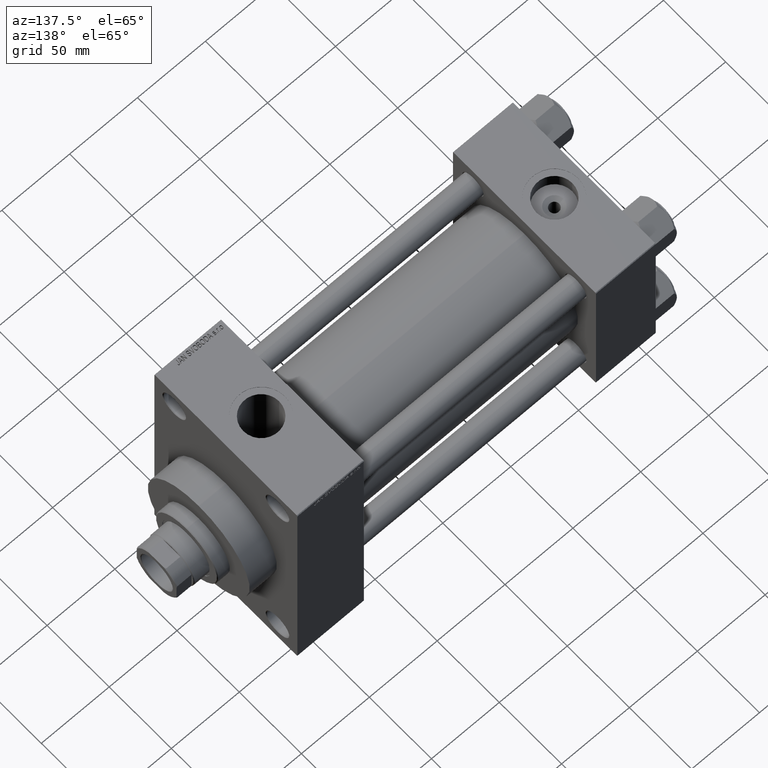
[diagram: clean part render]
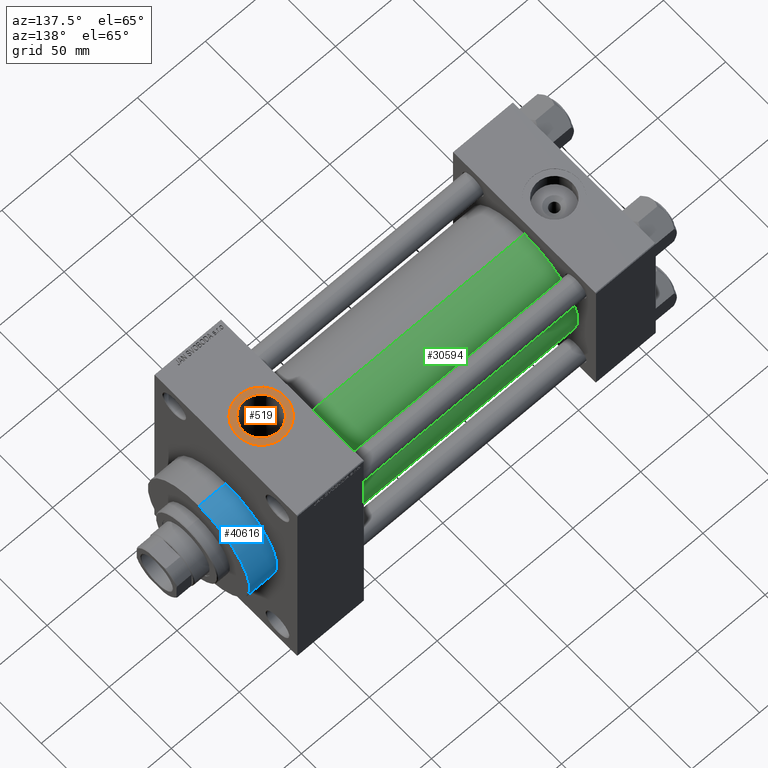
[diagram: same view with three faces highlighted in distinct colors, each labeled with its STEP entity id]
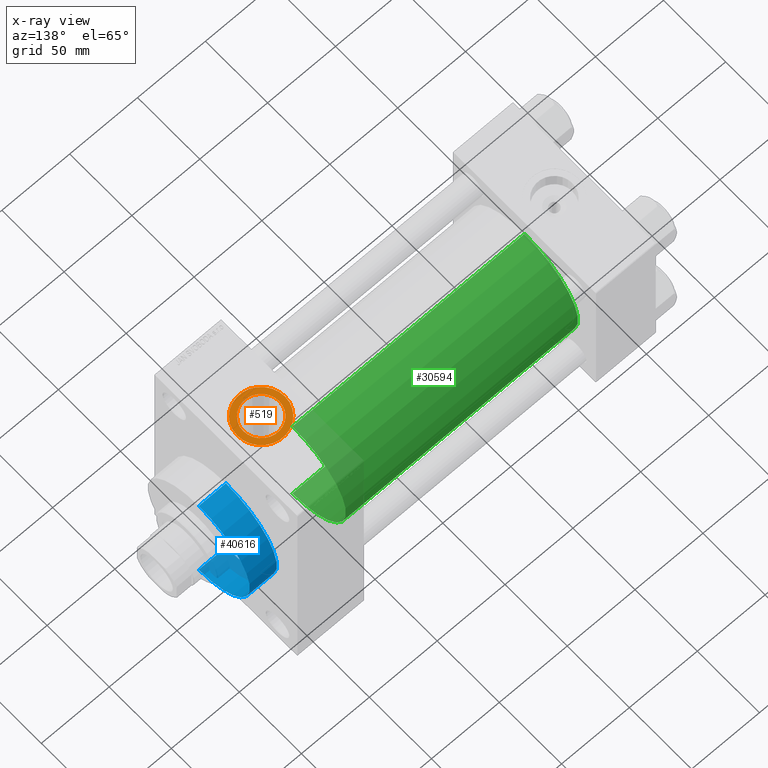
[diagram: x-ray of the same camera — body ghosted, the three highlighted faces saturated]
A machine part, auxiliary view with three faces highlighted in distinct colors.
The next image is the same camera in x-ray (body ghosted, the three faces saturated) — at least one of them is partly hidden behind the body in this view.
Their STEP definitions:

[orange] entity #519 — the highlighted planar face has unit normal (0, 0, 1).
#519 = ADVANCED_FACE ( 'NONE', ( #42188, #9642 ), #24812, .T. ) ;
#1498 = DIRECTION ( 'NONE',  ( 1.000000000000000000, 0.000000000000000000, 0.000000000000000000 ) ) ;
#4405 = CIRCLE ( 'NONE', #8263, 13.22000000000000952 ) ;
#6262 = CARTESIAN_POINT ( 'NONE',  ( 238.0000000000000000, 0.000000000000000000, 89.79999999999999716 ) ) ;
#6962 = ORIENTED_EDGE ( 'NONE', *, *, #41485, .T. ) ;
#7513 = DIRECTION ( 'NONE',  ( 0.000000000000000000, 0.000000000000000000, 1.000000000000000000 ) ) ;
#8263 = AXIS2_PLACEMENT_3D ( 'NONE', #21613, #44266, #22338 ) ;
#8378 = ORIENTED_EDGE ( 'NONE', *, *, #28409, .T. ) ;
#8501 = DIRECTION ( 'NONE',  ( 0.000000000000000000, 0.000000000000000000, 1.000000000000000000 ) ) ;
#9013 = AXIS2_PLACEMENT_3D ( 'NONE', #22440, #7513, #22675 ) ;
#9642 = FACE_OUTER_BOUND ( 'NONE', #29473, .T. ) ;
#11820 = CARTESIAN_POINT ( 'NONE',  ( 255.5000000000000000, 0.000000000000000000, 89.79999999999999716 ) ) ;
#13989 = VERTEX_POINT ( 'NONE', #37207 ) ;
#16875 = VERTEX_POINT ( 'NONE', #28342 ) ;
#17228 = CARTESIAN_POINT ( 'NONE',  ( 238.0000000000000000, 0.000000000000000000, 89.79999999999999716 ) ) ;
#17767 = ORIENTED_EDGE ( 'NONE', *, *, #31083, .T. ) ;
#21117 = CARTESIAN_POINT ( 'NONE',  ( 220.5000000000000000, 2.143131898507868248E-15, 89.79999999999999716 ) ) ;
#21389 = CIRCLE ( 'NONE', #42929, 17.50000000000001421 ) ;
#21613 = CARTESIAN_POINT ( 'NONE',  ( 238.0000000000000000, 0.000000000000000000, 89.79999999999999716 ) ) ;
#22338 = DIRECTION ( 'NONE',  ( 1.000000000000000000, 0.000000000000000000, 0.000000000000000000 ) ) ;
#22440 = CARTESIAN_POINT ( 'NONE',  ( 238.0000000000000000, 0.000000000000000000, 89.79999999999999716 ) ) ;
#22675 = DIRECTION ( 'NONE',  ( 1.000000000000000000, 0.000000000000000000, 0.000000000000000000 ) ) ;
#23101 = VERTEX_POINT ( 'NONE', #11820 ) ;
#24812 = PLANE ( 'NONE',  #47014 ) ;
#27485 = DIRECTION ( 'NONE',  ( 1.000000000000000000, 0.000000000000000000, -0.000000000000000000 ) ) ;
#28342 = CARTESIAN_POINT ( 'NONE',  ( 224.7800000000000011, 0.000000000000000000, 89.79999999999999716 ) ) ;
#28409 = EDGE_CURVE ( 'NONE', #32582, #23101, #37444, .T. ) ;
#29473 = EDGE_LOOP ( 'NONE', ( #17767, #8378 ) ) ;
#29620 = EDGE_CURVE ( 'NONE', #13989, #16875, #4405, .T. ) ;
#30964 = DIRECTION ( 'NONE',  ( 1.000000000000000000, 0.000000000000000000, 0.000000000000000000 ) ) ;
#31083 = EDGE_CURVE ( 'NONE', #23101, #32582, #21389, .T. ) ;
#31988 = AXIS2_PLACEMENT_3D ( 'NONE', #17228, #38666, #30964 ) ;
#32481 = EDGE_LOOP ( 'NONE', ( #6962, #42863 ) ) ;
#32582 = VERTEX_POINT ( 'NONE', #21117 ) ;
#37207 = CARTESIAN_POINT ( 'NONE',  ( 251.2199999999999989, 1.618983068472796024E-15, 89.79999999999999716 ) ) ;
#37444 = CIRCLE ( 'NONE', #9013, 17.50000000000001421 ) ;
#37636 = CARTESIAN_POINT ( 'NONE',  ( 238.0000000000000000, 0.000000000000000000, 89.79999999999999716 ) ) ;
#38666 = DIRECTION ( 'NONE',  ( -0.000000000000000000, -0.000000000000000000, -1.000000000000000000 ) ) ;
#39664 = CIRCLE ( 'NONE', #31988, 13.22000000000000952 ) ;
#41485 = EDGE_CURVE ( 'NONE', #16875, #13989, #39664, .T. ) ;
#42188 = FACE_BOUND ( 'NONE', #32481, .T. ) ;
#42863 = ORIENTED_EDGE ( 'NONE', *, *, #29620, .T. ) ;
#42929 = AXIS2_PLACEMENT_3D ( 'NONE', #37636, #8501, #1498 ) ;
#44266 = DIRECTION ( 'NONE',  ( -0.000000000000000000, -0.000000000000000000, -1.000000000000000000 ) ) ;
#45803 = DIRECTION ( 'NONE',  ( 0.000000000000000000, 0.000000000000000000, 1.000000000000000000 ) ) ;
#47014 = AXIS2_PLACEMENT_3D ( 'NONE', #6262, #45803, #27485 ) ;

[blue] entity #40616 — the highlighted cylindrical surface (partial cylindrical patch) has radius 41 mm, axis along (-1, -0, -0).
#336 = AXIS2_PLACEMENT_3D ( 'NONE', #29760, #17958, #7121 ) ;
#2561 = DIRECTION ( 'NONE',  ( -1.000000000000000000, -0.000000000000000000, -0.000000000000000000 ) ) ;
#6586 = AXIS2_PLACEMENT_3D ( 'NONE', #20871, #2561, #17258 ) ;
#7121 = DIRECTION ( 'NONE',  ( 0.000000000000000000, 0.000000000000000000, -1.000000000000000000 ) ) ;
#8543 = DIRECTION ( 'NONE',  ( -1.000000000000000000, -0.000000000000000000, -0.000000000000000000 ) ) ;
#9148 = VECTOR ( 'NONE', #31159, 1000.000000000000000 ) ;
#9630 = CIRCLE ( 'NONE', #38100, 41.00000000000000000 ) ;
#12616 = LINE ( 'NONE', #20564, #9148 ) ;
#13355 = VECTOR ( 'NONE', #8543, 1000.000000000000000 ) ;
#13733 = CARTESIAN_POINT ( 'NONE',  ( 264.0000000000000000, 5.021051876504148963E-15, -41.00000000000000000 ) ) ;
#14053 = EDGE_CURVE ( 'NONE', #31391, #30648, #27556, .T. ) ;
#14484 = CARTESIAN_POINT ( 'NONE',  ( 284.0000000000000568, 0.000000000000000000, 41.00000000000000000 ) ) ;
#17258 = DIRECTION ( 'NONE',  ( 0.000000000000000000, 0.000000000000000000, 1.000000000000000000 ) ) ;
#17958 = DIRECTION ( 'NONE',  ( 1.000000000000000000, 0.000000000000000000, 0.000000000000000000 ) ) ;
#20564 = CARTESIAN_POINT ( 'NONE',  ( 284.0000000000000568, 5.021051876504148963E-15, -41.00000000000000000 ) ) ;
#20871 = CARTESIAN_POINT ( 'NONE',  ( 284.0000000000000568, 0.000000000000000000, 0.000000000000000000 ) ) ;
#21097 = EDGE_CURVE ( 'NONE', #41210, #31391, #9630, .T. ) ;
#22585 = ORIENTED_EDGE ( 'NONE', *, *, #33166, .T. ) ;
#24497 = FACE_OUTER_BOUND ( 'NONE', #38491, .T. ) ;
#24956 = CARTESIAN_POINT ( 'NONE',  ( 264.0000000000000000, 0.000000000000000000, 41.00000000000000000 ) ) ;
#27556 = LINE ( 'NONE', #31161, #13355 ) ;
#27939 = CARTESIAN_POINT ( 'NONE',  ( 284.0000000000000568, 5.021051876504148963E-15, -41.00000000000000000 ) ) ;
#29211 = VERTEX_POINT ( 'NONE', #13733 ) ;
#29760 = CARTESIAN_POINT ( 'NONE',  ( 264.0000000000000000, 0.000000000000000000, 0.000000000000000000 ) ) ;
#30098 = ORIENTED_EDGE ( 'NONE', *, *, #14053, .F. ) ;
#30648 = VERTEX_POINT ( 'NONE', #24956 ) ;
#31159 = DIRECTION ( 'NONE',  ( -1.000000000000000000, -0.000000000000000000, -0.000000000000000000 ) ) ;
#31161 = CARTESIAN_POINT ( 'NONE',  ( 284.0000000000000568, 0.000000000000000000, 41.00000000000000000 ) ) ;
#31391 = VERTEX_POINT ( 'NONE', #14484 ) ;
#31899 = DIRECTION ( 'NONE',  ( 0.000000000000000000, 0.000000000000000000, -1.000000000000000000 ) ) ;
#33166 = EDGE_CURVE ( 'NONE', #41210, #29211, #12616, .T. ) ;
#38100 = AXIS2_PLACEMENT_3D ( 'NONE', #46616, #38652, #31899 ) ;
#38491 = EDGE_LOOP ( 'NONE', ( #47411, #22585, #43321, #30098 ) ) ;
#38596 = EDGE_CURVE ( 'NONE', #29211, #30648, #41909, .T. ) ;
#38652 = DIRECTION ( 'NONE',  ( 1.000000000000000000, 0.000000000000000000, 0.000000000000000000 ) ) ;
#39175 = CYLINDRICAL_SURFACE ( 'NONE', #6586, 41.00000000000000000 ) ;
#40616 = ADVANCED_FACE ( 'NONE', ( #24497 ), #39175, .T. ) ;
#41210 = VERTEX_POINT ( 'NONE', #27939 ) ;
#41909 = CIRCLE ( 'NONE', #336, 41.00000000000000000 ) ;
#43321 = ORIENTED_EDGE ( 'NONE', *, *, #38596, .T. ) ;
#46616 = CARTESIAN_POINT ( 'NONE',  ( 284.0000000000000568, 0.000000000000000000, 0.000000000000000000 ) ) ;
#47411 = ORIENTED_EDGE ( 'NONE', *, *, #21097, .F. ) ;

[green] entity #30594 — the highlighted cylindrical surface (partial cylindrical patch) has radius 43 mm, axis along (-1, -0, -0).
#36 = CARTESIAN_POINT ( 'NONE',  ( 43.99999999999998579, 2.663896022368408223E-15, -43.00000000000000000 ) ) ;
#61 = DIRECTION ( 'NONE',  ( 0.000000000000000000, 0.000000000000000000, 1.000000000000000000 ) ) ;
#2510 = CIRCLE ( 'NONE', #44831, 43.00000000000000000 ) ;
#5984 = VERTEX_POINT ( 'NONE', #28476 ) ;
#7424 = DIRECTION ( 'NONE',  ( 0.000000000000000000, 0.000000000000000000, -1.000000000000000000 ) ) ;
#7742 = ORIENTED_EDGE ( 'NONE', *, *, #12704, .T. ) ;
#8419 = ORIENTED_EDGE ( 'NONE', *, *, #14249, .T. ) ;
#8843 = CARTESIAN_POINT ( 'NONE',  ( 215.0000000000000284, -2.602085213965210642E-15, 0.000000000000000000 ) ) ;
#10976 = CIRCLE ( 'NONE', #42519, 43.00000000000000000 ) ;
#11389 = DIRECTION ( 'NONE',  ( 1.000000000000000000, -0.000000000000000000, 0.000000000000000000 ) ) ;
#12704 = EDGE_CURVE ( 'NONE', #39914, #28381, #25696, .T. ) ;
#13482 = EDGE_LOOP ( 'NONE', ( #30789, #7742, #8419, #33459 ) ) ;
#14249 = EDGE_CURVE ( 'NONE', #28381, #37647, #10976, .T. ) ;
#14301 = CARTESIAN_POINT ( 'NONE',  ( 215.0000000000000284, 2.663896022368408223E-15, -43.00000000000000000 ) ) ;
#14845 = EDGE_CURVE ( 'NONE', #39914, #5984, #2510, .T. ) ;
#15835 = FACE_OUTER_BOUND ( 'NONE', #13482, .T. ) ;
#16420 = VECTOR ( 'NONE', #30246, 1000.000000000000000 ) ;
#19212 = DIRECTION ( 'NONE',  ( -1.000000000000000000, -0.000000000000000000, -0.000000000000000000 ) ) ;
#19679 = DIRECTION ( 'NONE',  ( 0.000000000000000000, 0.000000000000000000, 1.000000000000000000 ) ) ;
#21278 = CARTESIAN_POINT ( 'NONE',  ( 43.99999999999998579, -2.602085213965210642E-15, 0.000000000000000000 ) ) ;
#25696 = LINE ( 'NONE', #44252, #16420 ) ;
#27606 = EDGE_CURVE ( 'NONE', #5984, #37647, #46672, .T. ) ;
#28381 = VERTEX_POINT ( 'NONE', #36 ) ;
#28476 = CARTESIAN_POINT ( 'NONE',  ( 215.0000000000000284, -2.602085213965210642E-15, 43.00000000000000000 ) ) ;
#29573 = CARTESIAN_POINT ( 'NONE',  ( 215.0000000000000284, -2.602085213965210642E-15, 0.000000000000000000 ) ) ;
#30246 = DIRECTION ( 'NONE',  ( -1.000000000000000000, -0.000000000000000000, -0.000000000000000000 ) ) ;
#30594 = ADVANCED_FACE ( 'NONE', ( #15835 ), #37978, .T. ) ;
#30789 = ORIENTED_EDGE ( 'NONE', *, *, #14845, .F. ) ;
#32923 = DIRECTION ( 'NONE',  ( -1.000000000000000000, -0.000000000000000000, -0.000000000000000000 ) ) ;
#33459 = ORIENTED_EDGE ( 'NONE', *, *, #27606, .F. ) ;
#34357 = VECTOR ( 'NONE', #32923, 1000.000000000000000 ) ;
#36292 = CARTESIAN_POINT ( 'NONE',  ( 215.0000000000000284, -2.602085213965210642E-15, 43.00000000000000000 ) ) ;
#37521 = CARTESIAN_POINT ( 'NONE',  ( 43.99999999999998579, -2.602085213965210642E-15, 43.00000000000000000 ) ) ;
#37647 = VERTEX_POINT ( 'NONE', #37521 ) ;
#37978 = CYLINDRICAL_SURFACE ( 'NONE', #45235, 43.00000000000000000 ) ;
#39914 = VERTEX_POINT ( 'NONE', #14301 ) ;
#42519 = AXIS2_PLACEMENT_3D ( 'NONE', #21278, #11389, #61 ) ;
#44252 = CARTESIAN_POINT ( 'NONE',  ( 215.0000000000000284, 2.663896022368408223E-15, -43.00000000000000000 ) ) ;
#44831 = AXIS2_PLACEMENT_3D ( 'NONE', #29573, #47431, #7424 ) ;
#45235 = AXIS2_PLACEMENT_3D ( 'NONE', #8843, #19212, #19679 ) ;
#46672 = LINE ( 'NONE', #36292, #34357 ) ;
#47431 = DIRECTION ( 'NONE',  ( 1.000000000000000000, 0.000000000000000000, 0.000000000000000000 ) ) ;